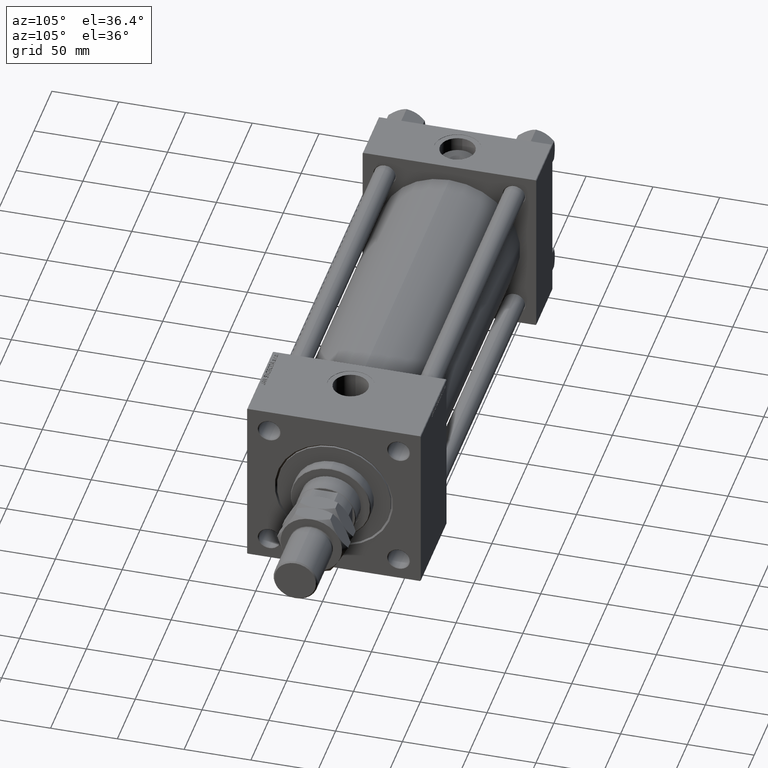
[diagram: clean part render]
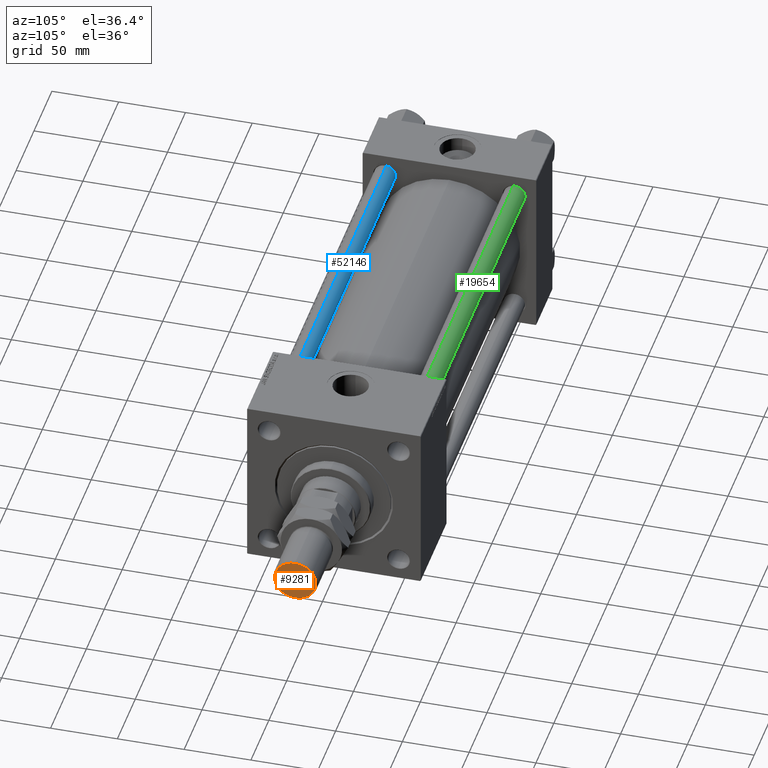
[diagram: same view with three faces highlighted in distinct colors, each labeled with its STEP entity id]
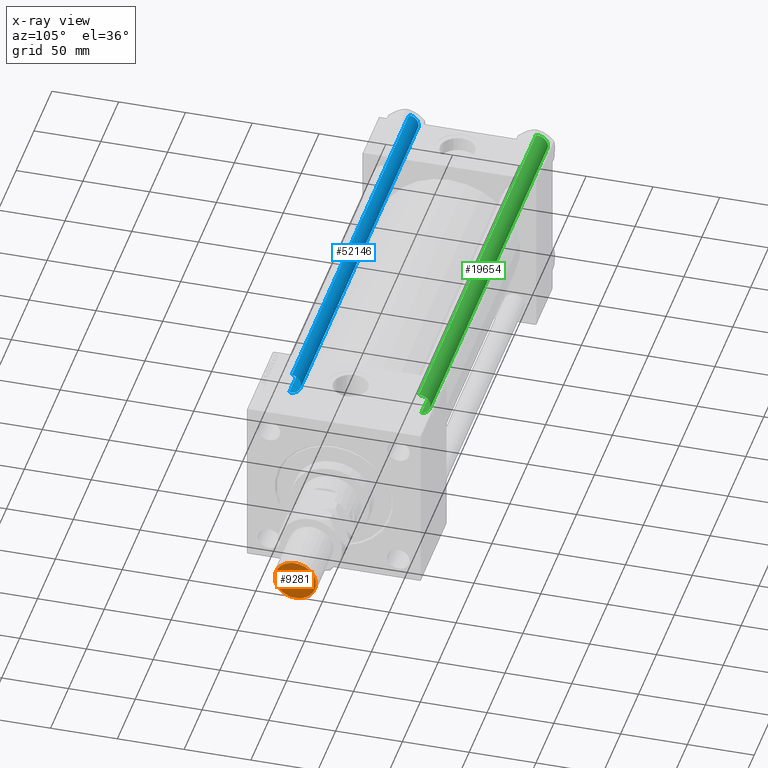
[diagram: x-ray of the same camera — body ghosted, the three highlighted faces saturated]
A machine part, auxiliary view with three faces highlighted in distinct colors.
The next image is the same camera in x-ray (body ghosted, the three faces saturated) — at least one of them is partly hidden behind the body in this view.
Their STEP definitions:

[orange] entity #9281 — the highlighted planar face has unit normal (1, 0, 0).
#3489 = CARTESIAN_POINT ( 'NONE',  ( 0.000000000000000000, 0.000000000000000000, 73.00000000000000000 ) ) ;
#4227 = EDGE_CURVE ( 'NONE', #15387, #31946, #21432, .T. ) ;
#5442 = EDGE_CURVE ( 'NONE', #31946, #15387, #33331, .T. ) ;
#8807 = AXIS2_PLACEMENT_3D ( 'NONE', #14131, #30274, #46414 ) ;
#9082 = DIRECTION ( 'NONE',  ( 0.000000000000000000, 0.000000000000000000, 1.000000000000000000 ) ) ;
#9281 = ADVANCED_FACE ( 'NONE', ( #19387 ), #20412, .T. ) ;
#14131 = CARTESIAN_POINT ( 'NONE',  ( 0.000000000000000000, 0.000000000000000000, 73.00000000000000000 ) ) ;
#15387 = VERTEX_POINT ( 'NONE', #39380 ) ;
#18782 = EDGE_LOOP ( 'NONE', ( #48917, #31184 ) ) ;
#19387 = FACE_OUTER_BOUND ( 'NONE', #18782, .T. ) ;
#19638 = DIRECTION ( 'NONE',  ( 1.000000000000000000, 0.000000000000000000, -0.000000000000000000 ) ) ;
#20412 = PLANE ( 'NONE',  #25790 ) ;
#21432 = CIRCLE ( 'NONE', #23132, 15.50000000000001421 ) ;
#23132 = AXIS2_PLACEMENT_3D ( 'NONE', #36620, #9082, #44548 ) ;
#25790 = AXIS2_PLACEMENT_3D ( 'NONE', #3489, #51648, #19638 ) ;
#30274 = DIRECTION ( 'NONE',  ( 0.000000000000000000, 0.000000000000000000, 1.000000000000000000 ) ) ;
#31184 = ORIENTED_EDGE ( 'NONE', *, *, #5442, .T. ) ;
#31946 = VERTEX_POINT ( 'NONE', #35121 ) ;
#33331 = CIRCLE ( 'NONE', #8807, 15.50000000000001421 ) ;
#35121 = CARTESIAN_POINT ( 'NONE',  ( 15.50000000000001421, 1.959434878635766315E-15, 73.00000000000000000 ) ) ;
#36620 = CARTESIAN_POINT ( 'NONE',  ( 0.000000000000000000, 0.000000000000000000, 73.00000000000000000 ) ) ;
#39380 = CARTESIAN_POINT ( 'NONE',  ( -15.50000000000001421, 0.000000000000000000, 73.00000000000000000 ) ) ;
#44548 = DIRECTION ( 'NONE',  ( 1.000000000000000000, 0.000000000000000000, 0.000000000000000000 ) ) ;
#46414 = DIRECTION ( 'NONE',  ( 1.000000000000000000, 0.000000000000000000, 0.000000000000000000 ) ) ;
#48917 = ORIENTED_EDGE ( 'NONE', *, *, #4227, .T. ) ;
#51648 = DIRECTION ( 'NONE',  ( 0.000000000000000000, 0.000000000000000000, 1.000000000000000000 ) ) ;

[blue] entity #52146 — the highlighted cylindrical surface (edge-blend (fillet) strip) has radius 8 mm, axis along (1, 0, -0).
#2673 = CARTESIAN_POINT ( 'NONE',  ( -8.000000000000000000, 0.000000000000000000, 329.0000000000000000 ) ) ;
#3100 = CARTESIAN_POINT ( 'NONE',  ( -8.000000000000000000, 0.000000000000000000, 328.5000000000000000 ) ) ;
#4957 = CIRCLE ( 'NONE', #14257, 8.000000000000000000 ) ;
#6427 = VERTEX_POINT ( 'NONE', #38681 ) ;
#8256 = DIRECTION ( 'NONE',  ( -0.000000000000000000, -0.000000000000000000, -1.000000000000000000 ) ) ;
#8661 = DIRECTION ( 'NONE',  ( 0.000000000000000000, 0.000000000000000000, -1.000000000000000000 ) ) ;
#10803 = VERTEX_POINT ( 'NONE', #11543 ) ;
#11177 = VECTOR ( 'NONE', #42118, 1000.000000000000000 ) ;
#11543 = CARTESIAN_POINT ( 'NONE',  ( 8.000000000000000000, 9.797174393178825657E-16, 328.5000000000000000 ) ) ;
#12369 = AXIS2_PLACEMENT_3D ( 'NONE', #31546, #19623, #47417 ) ;
#14043 = CIRCLE ( 'NONE', #12369, 8.000000000000000000 ) ;
#14257 = AXIS2_PLACEMENT_3D ( 'NONE', #33280, #8661, #49393 ) ;
#14712 = ORIENTED_EDGE ( 'NONE', *, *, #33425, .T. ) ;
#19623 = DIRECTION ( 'NONE',  ( -0.000000000000000000, -0.000000000000000000, 1.000000000000000000 ) ) ;
#23170 = LINE ( 'NONE', #32164, #30132 ) ;
#23434 = ORIENTED_EDGE ( 'NONE', *, *, #44499, .T. ) ;
#23538 = EDGE_CURVE ( 'NONE', #26062, #26815, #50824, .T. ) ;
#24389 = DIRECTION ( 'NONE',  ( -1.000000000000000000, 0.000000000000000000, 0.000000000000000000 ) ) ;
#26062 = VERTEX_POINT ( 'NONE', #3100 ) ;
#26815 = VERTEX_POINT ( 'NONE', #47691 ) ;
#26916 = ORIENTED_EDGE ( 'NONE', *, *, #23538, .T. ) ;
#28350 = CYLINDRICAL_SURFACE ( 'NONE', #35740, 8.000000000000000000 ) ;
#30132 = VECTOR ( 'NONE', #44313, 1000.000000000000000 ) ;
#31546 = CARTESIAN_POINT ( 'NONE',  ( 0.000000000000000000, 0.000000000000000000, 0.4999999999998894218 ) ) ;
#32164 = CARTESIAN_POINT ( 'NONE',  ( 8.000000000000000000, 9.797174393178825657E-16, 329.0000000000000000 ) ) ;
#33280 = CARTESIAN_POINT ( 'NONE',  ( 0.000000000000000000, 0.000000000000000000, 328.5000000000000000 ) ) ;
#33425 = EDGE_CURVE ( 'NONE', #26815, #6427, #14043, .T. ) ;
#33753 = ORIENTED_EDGE ( 'NONE', *, *, #39010, .F. ) ;
#35740 = AXIS2_PLACEMENT_3D ( 'NONE', #47694, #8256, #24389 ) ;
#38681 = CARTESIAN_POINT ( 'NONE',  ( 8.000000000000000000, 9.797174393178825657E-16, 0.4999999999998894218 ) ) ;
#39010 = EDGE_CURVE ( 'NONE', #10803, #6427, #23170, .T. ) ;
#40796 = FACE_OUTER_BOUND ( 'NONE', #42484, .T. ) ;
#42118 = DIRECTION ( 'NONE',  ( -0.000000000000000000, -0.000000000000000000, -1.000000000000000000 ) ) ;
#42484 = EDGE_LOOP ( 'NONE', ( #33753, #23434, #26916, #14712 ) ) ;
#44313 = DIRECTION ( 'NONE',  ( -0.000000000000000000, -0.000000000000000000, -1.000000000000000000 ) ) ;
#44499 = EDGE_CURVE ( 'NONE', #10803, #26062, #4957, .T. ) ;
#47417 = DIRECTION ( 'NONE',  ( 1.000000000000000000, 0.000000000000000000, 0.000000000000000000 ) ) ;
#47691 = CARTESIAN_POINT ( 'NONE',  ( -8.000000000000000000, 0.000000000000000000, 0.4999999999998894218 ) ) ;
#47694 = CARTESIAN_POINT ( 'NONE',  ( 0.000000000000000000, 0.000000000000000000, 329.0000000000000000 ) ) ;
#49393 = DIRECTION ( 'NONE',  ( 1.000000000000000000, 0.000000000000000000, 0.000000000000000000 ) ) ;
#50824 = LINE ( 'NONE', #2673, #11177 ) ;
#52146 = ADVANCED_FACE ( 'NONE', ( #40796 ), #28350, .T. ) ;

[green] entity #19654 — the highlighted cylindrical surface (edge-blend (fillet) strip) has radius 8 mm, axis along (-1, 0, 0).
#2580 = FACE_OUTER_BOUND ( 'NONE', #50217, .T. ) ;
#2673 = CARTESIAN_POINT ( 'NONE',  ( -8.000000000000000000, 0.000000000000000000, 329.0000000000000000 ) ) ;
#2965 = CARTESIAN_POINT ( 'NONE',  ( 0.000000000000000000, 0.000000000000000000, 0.4999999999998894218 ) ) ;
#3100 = CARTESIAN_POINT ( 'NONE',  ( -8.000000000000000000, 0.000000000000000000, 328.5000000000000000 ) ) ;
#3760 = AXIS2_PLACEMENT_3D ( 'NONE', #2965, #38433, #35004 ) ;
#5483 = AXIS2_PLACEMENT_3D ( 'NONE', #41547, #21444, #16162 ) ;
#6427 = VERTEX_POINT ( 'NONE', #38681 ) ;
#8012 = CIRCLE ( 'NONE', #5483, 8.000000000000000000 ) ;
#9012 = ORIENTED_EDGE ( 'NONE', *, *, #28669, .T. ) ;
#10803 = VERTEX_POINT ( 'NONE', #11543 ) ;
#11177 = VECTOR ( 'NONE', #42118, 1000.000000000000000 ) ;
#11231 = EDGE_CURVE ( 'NONE', #26062, #10803, #8012, .T. ) ;
#11543 = CARTESIAN_POINT ( 'NONE',  ( 8.000000000000000000, 9.797174393178825657E-16, 328.5000000000000000 ) ) ;
#16162 = DIRECTION ( 'NONE',  ( 1.000000000000000000, 0.000000000000000000, 0.000000000000000000 ) ) ;
#18722 = DIRECTION ( 'NONE',  ( -0.000000000000000000, -0.000000000000000000, -1.000000000000000000 ) ) ;
#19654 = ADVANCED_FACE ( 'NONE', ( #2580 ), #26119, .T. ) ;
#21444 = DIRECTION ( 'NONE',  ( 0.000000000000000000, 0.000000000000000000, -1.000000000000000000 ) ) ;
#23170 = LINE ( 'NONE', #32164, #30132 ) ;
#23348 = ORIENTED_EDGE ( 'NONE', *, *, #11231, .T. ) ;
#23538 = EDGE_CURVE ( 'NONE', #26062, #26815, #50824, .T. ) ;
#24037 = CIRCLE ( 'NONE', #3760, 8.000000000000000000 ) ;
#25453 = ORIENTED_EDGE ( 'NONE', *, *, #39010, .T. ) ;
#26062 = VERTEX_POINT ( 'NONE', #3100 ) ;
#26119 = CYLINDRICAL_SURFACE ( 'NONE', #32002, 8.000000000000000000 ) ;
#26815 = VERTEX_POINT ( 'NONE', #47691 ) ;
#28669 = EDGE_CURVE ( 'NONE', #6427, #26815, #24037, .T. ) ;
#30132 = VECTOR ( 'NONE', #44313, 1000.000000000000000 ) ;
#32002 = AXIS2_PLACEMENT_3D ( 'NONE', #42539, #18722, #34879 ) ;
#32164 = CARTESIAN_POINT ( 'NONE',  ( 8.000000000000000000, 9.797174393178825657E-16, 329.0000000000000000 ) ) ;
#33775 = ORIENTED_EDGE ( 'NONE', *, *, #23538, .F. ) ;
#34879 = DIRECTION ( 'NONE',  ( -1.000000000000000000, 0.000000000000000000, 0.000000000000000000 ) ) ;
#35004 = DIRECTION ( 'NONE',  ( 1.000000000000000000, 0.000000000000000000, 0.000000000000000000 ) ) ;
#38433 = DIRECTION ( 'NONE',  ( -0.000000000000000000, -0.000000000000000000, 1.000000000000000000 ) ) ;
#38681 = CARTESIAN_POINT ( 'NONE',  ( 8.000000000000000000, 9.797174393178825657E-16, 0.4999999999998894218 ) ) ;
#39010 = EDGE_CURVE ( 'NONE', #10803, #6427, #23170, .T. ) ;
#41547 = CARTESIAN_POINT ( 'NONE',  ( 0.000000000000000000, 0.000000000000000000, 328.5000000000000000 ) ) ;
#42118 = DIRECTION ( 'NONE',  ( -0.000000000000000000, -0.000000000000000000, -1.000000000000000000 ) ) ;
#42539 = CARTESIAN_POINT ( 'NONE',  ( 0.000000000000000000, 0.000000000000000000, 329.0000000000000000 ) ) ;
#44313 = DIRECTION ( 'NONE',  ( -0.000000000000000000, -0.000000000000000000, -1.000000000000000000 ) ) ;
#47691 = CARTESIAN_POINT ( 'NONE',  ( -8.000000000000000000, 0.000000000000000000, 0.4999999999998894218 ) ) ;
#50217 = EDGE_LOOP ( 'NONE', ( #23348, #25453, #9012, #33775 ) ) ;
#50824 = LINE ( 'NONE', #2673, #11177 ) ;